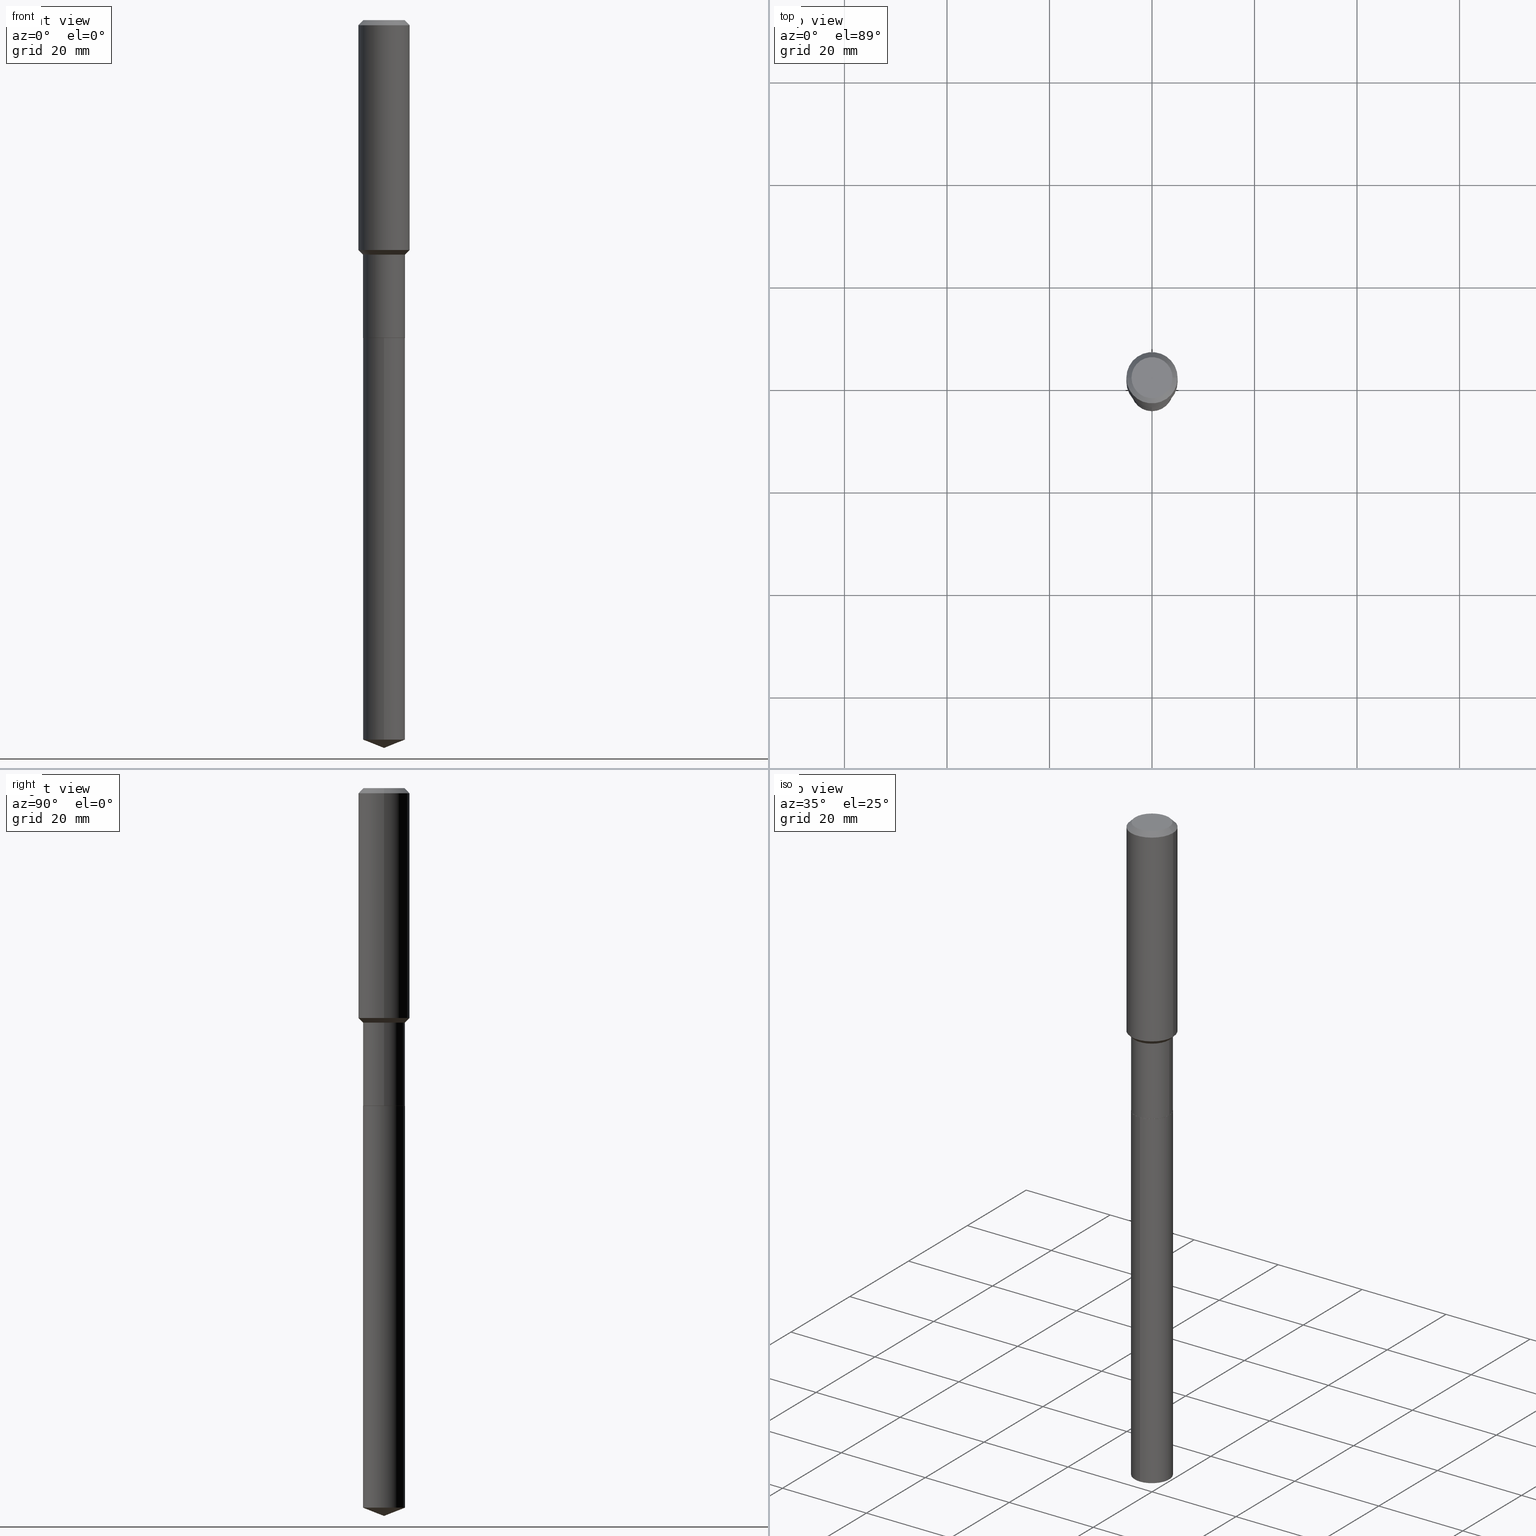
[diagram: canonical four-view strip — front | top / right | iso, engineering-drawing reading convention]
A machine part, canonical four-view strip (front | top / right | iso — engineering-drawing reading convention). The complete STEP part file that produces these views, byte-faithful:
ISO-10303-21;
HEADER;
FILE_DESCRIPTION (( 'STEP AP203' ),
    '1' );
FILE_NAME ('66658.STEP',
    '2024-04-25T03:02:01',
    ( '' ),
    ( '' ),
    'SwSTEP 2.0',
    'SolidWorks 2023',
    '' );
FILE_SCHEMA (( 'CONFIG_CONTROL_DESIGN' ));
ENDSEC;

DATA;
#1 = DIRECTION ( 'NONE',  ( -2.445468806185136597E-29, 3.491481338843145583E-15, 1.000000000000000000 ) ) ;
#2 = AXIS2_PLACEMENT_3D ( 'NONE', #41, #193, #274 ) ;
#3 = CIRCLE ( 'NONE', #341, 0.1968500000000002192 ) ;
#4 = FACE_OUTER_BOUND ( 'NONE', #14, .T. ) ;
#5 = ADVANCED_FACE ( 'NONE', ( #287 ), #318, .F. ) ;
#6 = DIRECTION ( 'NONE',  ( 0.7071067811865474617, -2.468850131082256666E-15, 0.7071067811865474617 ) ) ;
#7 = DIRECTION ( 'NONE',  ( -2.445468806185136597E-29, 3.491481338843145583E-15, 1.000000000000000000 ) ) ;
#8 = VECTOR ( 'NONE', #371, 39.37007874015748854 ) ;
#9 = APPROVAL_PERSON_ORGANIZATION ( #110, #202, #20 ) ;
#10 =( NAMED_UNIT ( * ) PLANE_ANGLE_UNIT ( ) SI_UNIT ( $, .RADIAN. ) );
#11 = LINE ( 'NONE', #387, #454 ) ;
#12 = CARTESIAN_POINT ( 'NONE',  ( 1.351579263302643101E-28, -1.929732669424208428E-14, -5.526922849235747393 ) ) ;
#13 = APPROVAL_ROLE ( '' ) ;
#14 = EDGE_LOOP ( 'NONE', ( #458, #60, #225, #209 ) ) ;
#15 = CONICAL_SURFACE ( 'NONE', #86, 0.1608999999999999875, 0.7853981633973118326 ) ;
#16 = VECTOR ( 'NONE', #441, 39.37007874015748143 ) ;
#17 = AXIS2_PLACEMENT_3D ( 'NONE', #168, #90, #316 ) ;
#18 = ORIENTED_EDGE ( 'NONE', *, *, #307, .T. ) ;
#19 = CC_DESIGN_PERSON_AND_ORGANIZATION_ASSIGNMENT ( #65, #30, ( #69 ) ) ;
#20 = APPROVAL_ROLE ( '' ) ;
#21 = FACE_OUTER_BOUND ( 'NONE', #29, .T. ) ;
#22 = CARTESIAN_POINT ( 'NONE',  ( -0.1613999999999999047, -5.144484248944659860E-15, -1.801899999999999169 ) ) ;
#23 = COORDINATED_UNIVERSAL_TIME_OFFSET ( 5, 0, .BEHIND. ) ;
#24 = ADVANCED_FACE ( 'NONE', ( #21 ), #99, .F. ) ;
#25 = FACE_OUTER_BOUND ( 'NONE', #228, .T. ) ;
#26 = LOCAL_TIME ( 23, 2, 1.000000000000000000, #171 ) ;
#27 = DIRECTION ( 'NONE',  ( -2.445468806185136597E-29, 3.491481338843145583E-15, 1.000000000000000000 ) ) ;
#28 = ORIENTED_EDGE ( 'NONE', *, *, #273, .F. ) ;
#29 = EDGE_LOOP ( 'NONE', ( #448, #53 ) ) ;
#30 = PERSON_AND_ORGANIZATION_ROLE ( 'design_supplier' ) ;
#31 = FACE_OUTER_BOUND ( 'NONE', #101, .T. ) ;
#32 = ORIENTED_EDGE ( 'NONE', *, *, #243, .T. ) ;
#33 = CARTESIAN_POINT ( 'NONE',  ( -0.1608999999999999875, -7.379093538144229883E-15, -2.440899999999999181 ) ) ;
#34 = CIRCLE ( 'NONE', #397, 0.1613999999999999879 ) ;
#35 = PERSON ( 'UNSPECIFIED', 'UNSPECIFIED', 'UNSPECIFIED', ('UNSPECIFIED'), ('UNSPECIFIED'), ('UNSPECIFIED') ) ;
#36 = ADVANCED_FACE ( 'NONE', ( #284 ), #180, .T. ) ;
#37 = ORIENTED_EDGE ( 'NONE', *, *, #42, .F. ) ;
#38 = DIRECTION ( 'NONE',  ( -2.445468806185136597E-29, 3.491481338843145583E-15, 1.000000000000000000 ) ) ;
#39 = ORIENTED_EDGE ( 'NONE', *, *, #460, .T. ) ;
#40 = DIRECTION ( 'NONE',  ( -2.445468806185136597E-29, 3.491481338843145583E-15, 1.000000000000000000 ) ) ;
#41 = CARTESIAN_POINT ( 'NONE',  ( -9.427742298522567634E-47, 1.346031739168368355E-32, 3.855188123715870730E-18 ) ) ;
#42 = EDGE_CURVE ( 'NONE', #75, #124, #11, .T. ) ;
#43 = AXIS2_PLACEMENT_3D ( 'NONE', #432, #249, #423 ) ;
#44 = AXIS2_PLACEMENT_3D ( 'NONE', #453, #85, #87 ) ;
#45 = CARTESIAN_POINT ( 'NONE',  ( -0.1614000000000000157, -6.259139666370332882E-15, -2.440399999999999014 ) ) ;
#46 = CYLINDRICAL_SURFACE ( 'NONE', #17, 0.1968500000000001082 ) ;
#47 = EDGE_CURVE ( 'NONE', #121, #124, #317, .T. ) ;
#48 = DIRECTION ( 'NONE',  ( -2.445468806185136877E-29, 3.491481338843145188E-15, 1.000000000000000000 ) ) ;
#49 = CARTESIAN_POINT ( 'NONE',  ( 1.351579263302643101E-28, -1.929732669424208428E-14, -5.526922849235747393 ) ) ;
#50 = ORIENTED_EDGE ( 'NONE', *, *, #437, .T. ) ;
#51 = AXIS2_PLACEMENT_3D ( 'NONE', #342, #488, #304 ) ;
#52 = CARTESIAN_POINT ( 'NONE',  ( 0.1608999999999999875, -9.645915494821952106E-15, -2.440899999999999181 ) ) ;
#53 = ORIENTED_EDGE ( 'NONE', *, *, #238, .F. ) ;
#54 = ORIENTED_EDGE ( 'NONE', *, *, #243, .F. ) ;
#55 = PLANE ( 'NONE',  #120 ) ;
#56 = DIRECTION ( 'NONE',  ( 2.445428369358333409E-29, -3.491539246680648506E-15, -1.000000000000000000 ) ) ;
#57 = ADVANCED_FACE ( 'NONE', ( #321 ), #15, .T. ) ;
#58 = PERSON_AND_ORGANIZATION_ROLE ( 'classification_officer' ) ;
#59 = CIRCLE ( 'NONE', #192, 0.1613999999999999879 ) ;
#60 = ORIENTED_EDGE ( 'NONE', *, *, #474, .T. ) ;
#61 = COORDINATED_UNIVERSAL_TIME_OFFSET ( 5, 0, .BEHIND. ) ;
#62 = DIRECTION ( 'NONE',  ( -2.445428369358333970E-29, 3.491539246680648506E-15, 1.000000000000000000 ) ) ;
#63 = EDGE_CURVE ( 'NONE', #124, #121, #237, .T. ) ;
#64 = CYLINDRICAL_SURFACE ( 'NONE', #456, 0.1613999999999999879 ) ;
#65 = PERSON_AND_ORGANIZATION ( #35, #390 ) ;
#66 = PRODUCT ( '66658', '66658', '', ( #130 ) ) ;
#67 = CIRCLE ( 'NONE', #2, 0.1574800000000000089 ) ;
#68 = DIRECTION ( 'NONE',  ( -2.445468806185136597E-29, 3.491481338843145583E-15, 1.000000000000000000 ) ) ;
#69 = PRODUCT_DEFINITION_FORMATION_WITH_SPECIFIED_SOURCE ( 'ANY', '', #66, .NOT_KNOWN. ) ;
#70 = CARTESIAN_POINT ( 'NONE',  ( 0.1614000000000000157, -9.647661235491372820E-15, -2.440399999999999014 ) ) ;
#71 = ORIENTED_EDGE ( 'NONE', *, *, #377, .T. ) ;
#72 = VERTEX_POINT ( 'NONE', #73 ) ;
#73 = CARTESIAN_POINT ( 'NONE',  ( -0.1968500000000000250, -1.753790040311104889E-15, -0.03937000000000026589 ) ) ;
#74 = ADVANCED_FACE ( 'NONE', ( #292 ), #229, .T. ) ;
#75 = VERTEX_POINT ( 'NONE', #298 ) ;
#76 = FACE_OUTER_BOUND ( 'NONE', #81, .T. ) ;
#77 = CIRCLE ( 'NONE', #311, 0.1968500000000002192 ) ;
#78 = APPROVAL_PERSON_ORGANIZATION ( #314, #222, #13 ) ;
#79 = ORIENTED_EDGE ( 'NONE', *, *, #412, .T. ) ;
#80 = CARTESIAN_POINT ( 'NONE',  ( 0.000000000000000000, 0.000000000000000000, 0.000000000000000000 ) ) ;
#81 = EDGE_LOOP ( 'NONE', ( #410, #396, #426, #116 ) ) ;
#82 = EDGE_CURVE ( 'NONE', #75, #121, #260, .T. ) ;
#83 = CARTESIAN_POINT ( 'NONE',  ( 5.969144809017299038E-29, -8.522356799982231388E-15, -2.440899999999999181 ) ) ;
#84 = VERTEX_POINT ( 'NONE', #482 ) ;
#85 = DIRECTION ( 'NONE',  ( -2.445468806185136597E-29, 3.491481338843145583E-15, 1.000000000000000000 ) ) ;
#86 = AXIS2_PLACEMENT_3D ( 'NONE', #473, #141, #350 ) ;
#87 = DIRECTION ( 'NONE',  ( 1.000000000000000000, -6.982962677686265922E-15, 4.876223630392693006E-29 ) ) ;
#88 = EDGE_LOOP ( 'NONE', ( #227, #296, #95, #315 ) ) ;
#89 = ADVANCED_FACE ( 'NONE', ( #443 ), #221, .T. ) ;
#90 = DIRECTION ( 'NONE',  ( -2.445468806185136597E-29, 3.491481338843145583E-15, 1.000000000000000000 ) ) ;
#91 = ORIENTED_EDGE ( 'NONE', *, *, #207, .F. ) ;
#92 = CIRCLE ( 'NONE', #365, 0.1614000000000000157 ) ;
#93 = CARTESIAN_POINT ( 'NONE',  ( 0.1968500000000001082, -1.374596203102542397E-15, 9.598753983154305062E-30 ) ) ;
#94 = VERTEX_POINT ( 'NONE', #112 ) ;
#95 = ORIENTED_EDGE ( 'NONE', *, *, #129, .F. ) ;
#96 = CC_DESIGN_PERSON_AND_ORGANIZATION_ASSIGNMENT ( #362, #479, ( #170 ) ) ;
#97 = FACE_OUTER_BOUND ( 'NONE', #88, .T. ) ;
#98 = PRODUCT_DEFINITION_SHAPE ( 'NONE', 'NONE',  #170 ) ;
#99 = PLANE ( 'NONE',  #181 ) ;
#100 = PERSON_AND_ORGANIZATION ( #35, #390 ) ;
#101 = EDGE_LOOP ( 'NONE', ( #123, #340, #153, #465 ) ) ;
#102 = CIRCLE ( 'NONE', #372, 0.1608999999999999875 ) ;
#103 = CARTESIAN_POINT ( 'NONE',  ( 4.319798372685731451E-29, -6.167527210999470955E-15, -1.766449999999998965 ) ) ;
#104 = EDGE_CURVE ( 'NONE', #487, #72, #184, .T. ) ;
#105 = CYLINDRICAL_SURFACE ( 'NONE', #462, 0.1613999999999999602 ) ;
#106 = CARTESIAN_POINT ( 'NONE',  ( -1.127050176178428435E-15, -0.1614000000000193058, -5.526922849235746504 ) ) ;
#107 = VECTOR ( 'NONE', #143, 39.37007874015748143 ) ;
#108 = DIRECTION ( 'NONE',  ( 1.000000000000000000, -6.982962677686265133E-15, 0.000000000000000000 ) ) ;
#109 = ORIENTED_EDGE ( 'NONE', *, *, #47, .F. ) ;
#110 = PERSON_AND_ORGANIZATION ( #35, #390 ) ;
#111 = CC_DESIGN_PERSON_AND_ORGANIZATION_ASSIGNMENT ( #188, #142, ( #69 ) ) ;
#112 = CARTESIAN_POINT ( 'NONE',  ( 0.1968500000000002192, -7.542123414102014930E-15, -1.766449999999998965 ) ) ;
#113 = ORIENTED_EDGE ( 'NONE', *, *, #474, .F. ) ;
#114 = DIRECTION ( 'NONE',  ( 1.000000000000000000, -6.982962677686268288E-15, 0.000000000000000000 ) ) ;
#115 = EDGE_LOOP ( 'NONE', ( #415, #155, #248, #54 ) ) ;
#116 = ORIENTED_EDGE ( 'NONE', *, *, #104, .F. ) ;
#117 = LINE ( 'NONE', #337, #346 ) ;
#118 = VECTOR ( 'NONE', #255, 39.37007874015748143 ) ;
#119 = ADVANCED_FACE ( 'NONE', ( #25 ), #64, .T. ) ;
#120 = AXIS2_PLACEMENT_3D ( 'NONE', #355, #467, #132 ) ;
#121 = VERTEX_POINT ( 'NONE', #325 ) ;
#122 = CARTESIAN_POINT ( 'NONE',  ( 0.1613999999999999047, -7.418350400640025199E-15, -1.801899999999999169 ) ) ;
#123 = ORIENTED_EDGE ( 'NONE', *, *, #399, .T. ) ;
#124 = VERTEX_POINT ( 'NONE', #106 ) ;
#125 = DIRECTION ( 'NONE',  ( -2.445468806185136597E-29, 3.491481338843145583E-15, 1.000000000000000000 ) ) ;
#126 = DIRECTION ( 'NONE',  ( -2.445468806185136597E-29, 3.491481338843145583E-15, 1.000000000000000000 ) ) ;
#127 = AXIS2_PLACEMENT_3D ( 'NONE', #459, #125, #383 ) ;
#128 = LINE ( 'NONE', #93, #282 ) ;
#129 = EDGE_CURVE ( 'NONE', #235, #72, #281, .T. ) ;
#130 = MECHANICAL_CONTEXT ( 'NONE', #386, 'mechanical' ) ;
#131 = ORIENTED_EDGE ( 'NONE', *, *, #451, .F. ) ;
#132 = DIRECTION ( 'NONE',  ( -1.000000000000000000, 6.982962677686265922E-15, -4.876176775795935793E-29 ) ) ;
#133 = VERTEX_POINT ( 'NONE', #289 ) ;
#134 = CLOSED_SHELL ( 'NONE', ( #57, #277, #466, #252, #196, #407, #149, #391, #74, #481, #24, #353 ) ) ;
#135 = EDGE_CURVE ( 'NONE', #278, #133, #480, .T. ) ;
#136 = AXIS2_PLACEMENT_3D ( 'NONE', #363, #366, #226 ) ;
#137 = SECURITY_CLASSIFICATION ( '', '', #219 ) ;
#138 = DIRECTION ( 'NONE',  ( -2.445468806185136597E-29, 3.491481338843145583E-15, 1.000000000000000000 ) ) ;
#139 = EDGE_LOOP ( 'NONE', ( #79, #452 ) ) ;
#140 = DIRECTION ( 'NONE',  ( 1.000000000000000000, -6.982962677686268288E-15, 0.000000000000000000 ) ) ;
#141 = DIRECTION ( 'NONE',  ( -2.445468806185136597E-29, 3.491481338843145583E-15, 1.000000000000000000 ) ) ;
#142 = PERSON_AND_ORGANIZATION_ROLE ( 'creator' ) ;
#143 = DIRECTION ( 'NONE',  ( -0.7071067811865452413, 2.468850131082233000E-15, -0.7071067811865497932 ) ) ;
#144 = DIRECTION ( 'NONE',  ( -2.445468806185136597E-29, 3.491481338843145583E-15, 1.000000000000000000 ) ) ;
#145 = APPLICATION_CONTEXT ( 'configuration controlled 3d designs of mechanical parts and assemblies' ) ;
#146 = DIRECTION ( 'NONE',  ( -2.445428369358333970E-29, 3.491539246680648506E-15, 1.000000000000000000 ) ) ;
#147 = DATE_AND_TIME ( #182, #276 ) ;
#148 = DIRECTION ( 'NONE',  ( 1.000000000000000000, -6.982962677686268288E-15, 0.000000000000000000 ) ) ;
#149 = ADVANCED_FACE ( 'NONE', ( #409 ), #382, .T. ) ;
#150 = AXIS2_PLACEMENT_3D ( 'NONE', #80, #1, #159 ) ;
#151 = DIRECTION ( 'NONE',  ( 2.445468806185136597E-29, -3.491481338843145583E-15, -1.000000000000000000 ) ) ;
#152 = LOCAL_TIME ( 23, 2, 1.000000000000000000, #288 ) ;
#153 = ORIENTED_EDGE ( 'NONE', *, *, #178, .F. ) ;
#154 = CARTESIAN_POINT ( 'NONE',  ( 0.1574800000000000089, -1.284169937930321189E-15, 3.855188123724205385E-18 ) ) ;
#155 = ORIENTED_EDGE ( 'NONE', *, *, #238, .T. ) ;
#156 = DIRECTION ( 'NONE',  ( 1.000000000000000000, -6.982962677686265922E-15, 0.000000000000000000 ) ) ;
#157 = EDGE_CURVE ( 'NONE', #251, #265, #92, .T. ) ;
#158 = EDGE_LOOP ( 'NONE', ( #213, #455, #18, #113 ) ) ;
#159 = DIRECTION ( 'NONE',  ( 1.000000000000000000, -6.982962677686266711E-15, 4.876176775795935793E-29 ) ) ;
#160 = EDGE_LOOP ( 'NONE', ( #37, #302, #360 ) ) ;
#161 = FACE_OUTER_BOUND ( 'NONE', #468, .T. ) ;
#162 = CARTESIAN_POINT ( 'NONE',  ( 9.627810689950948900E-31, -1.374596203102555561E-16, -0.03937000000000026589 ) ) ;
#163 = EDGE_CURVE ( 'NONE', #483, #265, #402, .T. ) ;
#164 = APPLICATION_PROTOCOL_DEFINITION ( 'international standard', 'config_control_design', 1994, #145 ) ;
#165 = AXIS2_PLACEMENT_3D ( 'NONE', #401, #27, #368 ) ;
#166 = DIRECTION ( 'NONE',  ( -6.982962677686266711E-15, -1.000000000000000000, 6.770379166454184154E-15 ) ) ;
#167 = UNCERTAINTY_MEASURE_WITH_UNIT (LENGTH_MEASURE( 1.000000000000000082E-05 ), #244, 'distance_accuracy_value', 'NONE');
#168 = CARTESIAN_POINT ( 'NONE',  ( 0.000000000000000000, 0.000000000000000000, 0.000000000000000000 ) ) ;
#169 = DIRECTION ( 'NONE',  ( -2.445428369358333970E-29, 3.491539246680648506E-15, 1.000000000000000000 ) ) ;
#170 = PRODUCT_DEFINITION ( 'UNKNOWN', '', #69, #354 ) ;
#171 = COORDINATED_UNIVERSAL_TIME_OFFSET ( 5, 0, .BEHIND. ) ;
#172 = ORIENTED_EDGE ( 'NONE', *, *, #361, .F. ) ;
#173 = AXIS2_PLACEMENT_3D ( 'NONE', #197, #490, #156 ) ;
#174 = DIRECTION ( 'NONE',  ( -6.497071151882111159E-15, -0.9304175679820234635, 0.3665012267243001332 ) ) ;
#175 = ADVANCED_BREP_SHAPE_REPRESENTATION ( '66658', ( #261, #424, #269 ), #327 ) ;
#176 = PERSON_AND_ORGANIZATION ( #35, #390 ) ;
#177 = CARTESIAN_POINT ( 'NONE',  ( 5.969144809017297917E-29, -8.522356799982231388E-15, -2.440899999999999181 ) ) ;
#178 = EDGE_CURVE ( 'NONE', #94, #133, #77, .T. ) ;
#179 = CARTESIAN_POINT ( 'NONE',  ( -0.1968500000000000250, 1.237136582792286225E-15, -0.03937000000000026589 ) ) ;
#180 = CONICAL_SURFACE ( 'NONE', #43, 99.94676754583900902, 1.195550537616116182 ) ;
#181 = AXIS2_PLACEMENT_3D ( 'NONE', #352, #242, #471 ) ;
#182 = CALENDAR_DATE ( 2024, 24, 4 ) ;
#183 = CIRCLE ( 'NONE', #438, 0.1614000000000000157 ) ;
#184 = LINE ( 'NONE', #179, #107 ) ;
#185 = DATE_TIME_ROLE ( 'creation_date' ) ;
#186 = CARTESIAN_POINT ( 'NONE',  ( 0.1968500000000000250, -1.512055823412797189E-15, -0.03937000000000026589 ) ) ;
#187 = CC_DESIGN_DATE_AND_TIME_ASSIGNMENT ( #406, #185, ( #170 ) ) ;
#188 = PERSON_AND_ORGANIZATION ( #35, #390 ) ;
#189 = CARTESIAN_POINT ( 'NONE',  ( 4.406490241864995269E-29, -6.291300224461461475E-15, -1.801899999999999169 ) ) ;
#190 = ORIENTED_EDGE ( 'NONE', *, *, #333, .T. ) ;
#191 = DIMENSIONAL_EXPONENTS ( 1.000000000000000000, 0.000000000000000000, 0.000000000000000000, 0.000000000000000000, 0.000000000000000000, 0.000000000000000000, 0.000000000000000000 ) ;
#192 = AXIS2_PLACEMENT_3D ( 'NONE', #472, #283, #464 ) ;
#193 = DIRECTION ( 'NONE',  ( -2.445468806185136597E-29, 3.491481338843145583E-15, 1.000000000000000000 ) ) ;
#194 = CC_DESIGN_APPROVAL ( #202, ( #69 ) ) ;
#195 = EDGE_LOOP ( 'NONE', ( #434, #28, #379, #71 ) ) ;
#196 = ADVANCED_FACE ( 'NONE', ( #322 ), #105, .T. ) ;
#197 = CARTESIAN_POINT ( 'NONE',  ( 9.627810689950948900E-31, -1.374596203102555561E-16, -0.03937000000000026589 ) ) ;
#198 = LINE ( 'NONE', #240, #319 ) ;
#199 = CYLINDRICAL_SURFACE ( 'NONE', #150, 0.1968500000000001082 ) ;
#200 = AXIS2_PLACEMENT_3D ( 'NONE', #162, #275, #232 ) ;
#201 = CARTESIAN_POINT ( 'NONE',  ( -0.1613999999999999602, 1.146815975516801417E-15, -7.939161235671416085E-30 ) ) ;
#202 = APPROVAL ( #395, 'UNSPECIFIED' ) ;
#203 =( NAMED_UNIT ( * ) SI_UNIT ( $, .STERADIAN. ) SOLID_ANGLE_UNIT ( ) );
#204 = CARTESIAN_POINT ( 'NONE',  ( 4.319798372685731451E-29, -6.167527210999470955E-15, -1.766449999999998965 ) ) ;
#205 = ORIENTED_EDGE ( 'NONE', *, *, #163, .T. ) ;
#206 = AXIS2_PLACEMENT_3D ( 'NONE', #485, #151, #258 ) ;
#207 = EDGE_CURVE ( 'NONE', #278, #330, #295, .T. ) ;
#208 = CARTESIAN_POINT ( 'NONE',  ( 0.000000000000000000, 0.000000000000000000, 0.000000000000000000 ) ) ;
#209 = ORIENTED_EDGE ( 'NONE', *, *, #377, .F. ) ;
#210 = DIRECTION ( 'NONE',  ( 1.000000000000000000, 0.000000000000000000, 0.000000000000000000 ) ) ;
#211 = EDGE_LOOP ( 'NONE', ( #50, #205, #271, #131 ) ) ;
#212 = DIRECTION ( 'NONE',  ( 1.000000000000000000, -6.982962677686265922E-15, 0.000000000000000000 ) ) ;
#213 = ORIENTED_EDGE ( 'NONE', *, *, #135, .F. ) ;
#214 = VECTOR ( 'NONE', #414, 39.37007874015748143 ) ;
#215 = DATE_AND_TIME ( #331, #152 ) ;
#216 = DIRECTION ( 'NONE',  ( 6.982962677686265922E-15, 1.000000000000000000, -3.491539246680648506E-15 ) ) ;
#217 = DATE_AND_TIME ( #293, #26 ) ;
#218 = DIRECTION ( 'NONE',  ( -6.982962677686265922E-15, -1.000000000000000000, 3.498627837350038143E-15 ) ) ;
#219 = SECURITY_CLASSIFICATION_LEVEL ( 'unclassified' ) ;
#220 = DIRECTION ( 'NONE',  ( -6.982962677686266711E-15, -1.000000000000000000, 3.385189583227092077E-15 ) ) ;
#221 = CONICAL_SURFACE ( 'NONE', #358, 99.94676754583900902, 1.195550537616116182 ) ;
#222 = APPROVAL ( #351, 'UNSPECIFIED' ) ;
#223 = CARTESIAN_POINT ( 'NONE',  ( 0.000000000000000000, 0.000000000000000000, 0.000000000000000000 ) ) ;
#224 = DIRECTION ( 'NONE',  ( 1.000000000000000000, -6.982962677686265922E-15, 0.000000000000000000 ) ) ;
#225 = ORIENTED_EDGE ( 'NONE', *, *, #444, .T. ) ;
#226 = DIRECTION ( 'NONE',  ( 1.000000000000000000, -6.982962677686265922E-15, 0.000000000000000000 ) ) ;
#227 = ORIENTED_EDGE ( 'NONE', *, *, #178, .T. ) ;
#228 = EDGE_LOOP ( 'NONE', ( #266, #375, #357, #489 ) ) ;
#229 = CONICAL_SURFACE ( 'NONE', #206, 0.1968500000000000250, 0.7853981633974450594 ) ;
#230 = CARTESIAN_POINT ( 'NONE',  ( 1.146815975516860976E-15, 0.1613999999999914392, -2.440899999999999626 ) ) ;
#231 = EDGE_LOOP ( 'NONE', ( #172, #392, #190, #303 ) ) ;
#232 = DIRECTION ( 'NONE',  ( -1.000000000000000000, 6.982962677686265922E-15, 0.000000000000000000 ) ) ;
#233 = ORIENTED_EDGE ( 'NONE', *, *, #273, .T. ) ;
#234 = DIRECTION ( 'NONE',  ( -2.445468806185136877E-29, 3.491481338843145188E-15, 1.000000000000000000 ) ) ;
#235 = VERTEX_POINT ( 'NONE', #186 ) ;
#236 = LINE ( 'NONE', #201, #486 ) ;
#237 = CIRCLE ( 'NONE', #356, 0.1613999999999999879 ) ;
#238 = EDGE_CURVE ( 'NONE', #483, #313, #253, .T. ) ;
#239 = AXIS2_PLACEMENT_3D ( 'NONE', #378, #40, #416 ) ;
#240 = CARTESIAN_POINT ( 'NONE',  ( 0.1968500000000000250, -1.487948651171581601E-15, -0.03937000000000026589 ) ) ;
#241 = DIRECTION ( 'NONE',  ( 0.7071067811864509833, -2.468850131081245741E-15, 0.7071067811866440511 ) ) ;
#242 = DIRECTION ( 'NONE',  ( -2.438088387897960049E-29, 3.491481338843145188E-15, 1.000000000000000000 ) ) ;
#243 = EDGE_CURVE ( 'NONE', #265, #251, #183, .T. ) ;
#244 =( CONVERSION_BASED_UNIT ( 'INCH', #345 ) LENGTH_UNIT ( ) NAMED_UNIT ( #191 ) );
#245 = ORIENTED_EDGE ( 'NONE', *, *, #285, .T. ) ;
#246 = AXIS2_PLACEMENT_3D ( 'NONE', #477, #144, #364 ) ;
#247 = FACE_OUTER_BOUND ( 'NONE', #376, .T. ) ;
#248 = ORIENTED_EDGE ( 'NONE', *, *, #451, .T. ) ;
#249 = DIRECTION ( 'NONE',  ( -2.445428369358333970E-29, 3.491539246680648506E-15, 1.000000000000000000 ) ) ;
#250 = CARTESIAN_POINT ( 'NONE',  ( 5.969144809017299038E-29, -8.522356799982231388E-15, -2.440899999999999181 ) ) ;
#251 = VERTEX_POINT ( 'NONE', #70 ) ;
#252 = ADVANCED_FACE ( 'NONE', ( #31 ), #419, .T. ) ;
#253 = CIRCLE ( 'NONE', #267, 0.1608999999999999875 ) ;
#254 = COORDINATED_UNIVERSAL_TIME_OFFSET ( 5, 0, .BEHIND. ) ;
#255 = DIRECTION ( 'NONE',  ( 6.611014441532059489E-15, 0.9304175679820259059, 0.3665012267242935828 ) ) ;
#256 = DIRECTION ( 'NONE',  ( 1.000000000000000000, -6.982962677686265133E-15, 0.000000000000000000 ) ) ;
#257 = EDGE_CURVE ( 'NONE', #133, #72, #305, .T. ) ;
#258 = DIRECTION ( 'NONE',  ( -1.000000000000000000, 6.982962677686265922E-15, 0.000000000000000000 ) ) ;
#259 = AXIS2_PLACEMENT_3D ( 'NONE', #189, #126, #384 ) ;
#260 = LINE ( 'NONE', #449, #118 ) ;
#261 = MANIFOLD_SOLID_BREP ( 'Body-Move/Copy2[1]', #403 ) ;
#262 = DIRECTION ( 'NONE',  ( -2.445468806185136597E-29, 3.491481338843145583E-15, 1.000000000000000000 ) ) ;
#263 = ORIENTED_EDGE ( 'NONE', *, *, #369, .T. ) ;
#264 = LINE ( 'NONE', #230, #214 ) ;
#265 = VERTEX_POINT ( 'NONE', #45 ) ;
#266 = ORIENTED_EDGE ( 'NONE', *, *, #63, .T. ) ;
#267 = AXIS2_PLACEMENT_3D ( 'NONE', #329, #446, #148 ) ;
#268 = LINE ( 'NONE', #411, #334 ) ;
#269 = AXIS2_PLACEMENT_3D ( 'NONE', #208, #388, #210 ) ;
#270 = CARTESIAN_POINT ( 'NONE',  ( 1.146815975516936904E-15, 0.1613999999999914392, -2.440899999999999626 ) ) ;
#271 = ORIENTED_EDGE ( 'NONE', *, *, #157, .F. ) ;
#272 = ORIENTED_EDGE ( 'NONE', *, *, #399, .F. ) ;
#273 = EDGE_CURVE ( 'NONE', #487, #299, #67, .T. ) ;
#274 = DIRECTION ( 'NONE',  ( 1.000000000000000000, -6.982962677686265922E-15, 4.876223630392693006E-29 ) ) ;
#275 = DIRECTION ( 'NONE',  ( 2.445468806185136597E-29, -3.491481338843145583E-15, -1.000000000000000000 ) ) ;
#276 = LOCAL_TIME ( 23, 2, 1.000000000000000000, #61 ) ;
#277 = ADVANCED_FACE ( 'NONE', ( #76 ), #404, .T. ) ;
#278 = VERTEX_POINT ( 'NONE', #421 ) ;
#279 = CARTESIAN_POINT ( 'NONE',  ( 0.1613999999999999602, -1.127050176178562936E-15, 7.870149316134637915E-30 ) ) ;
#280 = ORIENTED_EDGE ( 'NONE', *, *, #82, .F. ) ;
#281 = CIRCLE ( 'NONE', #136, 0.1968500000000000250 ) ;
#282 = VECTOR ( 'NONE', #48, 39.37007874015748143 ) ;
#283 = DIRECTION ( 'NONE',  ( -2.445428369358333970E-29, 3.491539246680648506E-15, 1.000000000000000000 ) ) ;
#284 = FACE_OUTER_BOUND ( 'NONE', #370, .T. ) ;
#285 = EDGE_CURVE ( 'NONE', #299, #487, #470, .T. ) ;
#286 = CARTESIAN_POINT ( 'NONE',  ( -0.1608999999999999875, -7.376444310970119471E-15, -2.440899999999999181 ) ) ;
#287 = FACE_OUTER_BOUND ( 'NONE', #139, .T. ) ;
#288 = COORDINATED_UNIVERSAL_TIME_OFFSET ( 5, 0, .BEHIND. ) ;
#289 = CARTESIAN_POINT ( 'NONE',  ( -0.1968500000000002192, -4.768823835655711590E-15, -1.766449999999998965 ) ) ;
#290 = CARTESIAN_POINT ( 'NONE',  ( 5.967922074614205116E-29, -8.520611059312809095E-15, -2.440399999999999014 ) ) ;
#291 = ADVANCED_FACE ( 'NONE', ( #418 ), #335, .T. ) ;
#292 = FACE_OUTER_BOUND ( 'NONE', #195, .T. ) ;
#293 = CALENDAR_DATE ( 2024, 24, 4 ) ;
#294 = DIRECTION ( 'NONE',  ( -2.445468806185136597E-29, 3.491481338843145583E-15, 1.000000000000000000 ) ) ;
#295 = CIRCLE ( 'NONE', #165, 0.1613999999999999047 ) ;
#296 = ORIENTED_EDGE ( 'NONE', *, *, #257, .T. ) ;
#297 = APPROVAL_ROLE ( '' ) ;
#298 = CARTESIAN_POINT ( 'NONE',  ( 1.367116729889776270E-28, -1.951945015856816032E-14, -5.590499999999999581 ) ) ;
#299 = VERTEX_POINT ( 'NONE', #154 ) ;
#300 = APPROVAL ( #442, 'UNSPECIFIED' ) ;
#301 = DIRECTION ( 'NONE',  ( -2.445428369358333970E-29, 3.491539246680648506E-15, 1.000000000000000000 ) ) ;
#302 = ORIENTED_EDGE ( 'NONE', *, *, #82, .T. ) ;
#303 = ORIENTED_EDGE ( 'NONE', *, *, #427, .F. ) ;
#304 = DIRECTION ( 'NONE',  ( -6.982962677686266711E-15, -1.000000000000000000, 3.385189583227092077E-15 ) ) ;
#305 = LINE ( 'NONE', #457, #428 ) ;
#306 = CC_DESIGN_APPROVAL ( #222, ( #170 ) ) ;
#307 = EDGE_CURVE ( 'NONE', #330, #94, #117, .T. ) ;
#308 = CYLINDRICAL_SURFACE ( 'NONE', #127, 0.1613999999999999602 ) ;
#309 = DIRECTION ( 'NONE',  ( -2.445428369358333970E-29, 3.491539246680648506E-15, 1.000000000000000000 ) ) ;
#310 = PERSON_AND_ORGANIZATION_ROLE ( 'design_owner' ) ;
#311 = AXIS2_PLACEMENT_3D ( 'NONE', #103, #68, #224 ) ;
#312 = LOCAL_TIME ( 23, 2, 1.000000000000000000, #23 ) ;
#313 = VERTEX_POINT ( 'NONE', #338 ) ;
#314 = PERSON_AND_ORGANIZATION ( #35, #390 ) ;
#315 = ORIENTED_EDGE ( 'NONE', *, *, #444, .F. ) ;
#316 = DIRECTION ( 'NONE',  ( 1.000000000000000000, -6.982962677686266711E-15, 4.876176775795935793E-29 ) ) ;
#317 = CIRCLE ( 'NONE', #381, 0.1613999999999999879 ) ;
#318 = PLANE ( 'NONE',  #469 ) ;
#319 = VECTOR ( 'NONE', #374, 39.37007874015748143 ) ;
#320 = EDGE_CURVE ( 'NONE', #299, #235, #198, .T. ) ;
#321 = FACE_OUTER_BOUND ( 'NONE', #211, .T. ) ;
#322 = FACE_OUTER_BOUND ( 'NONE', #417, .T. ) ;
#323 = DATE_TIME_ROLE ( 'classification_date' ) ;
#324 = CC_DESIGN_DATE_AND_TIME_ASSIGNMENT ( #215, #323, ( #137 ) ) ;
#325 = CARTESIAN_POINT ( 'NONE',  ( 1.146815975516936707E-15, 0.1613999999999807256, -5.526922849235749169 ) ) ;
#326 = CIRCLE ( 'NONE', #239, 0.1613999999999999047 ) ;
#327 =( GEOMETRIC_REPRESENTATION_CONTEXT ( 3 ) GLOBAL_UNCERTAINTY_ASSIGNED_CONTEXT ( ( #167 ) ) GLOBAL_UNIT_ASSIGNED_CONTEXT ( ( #244, #10, #203 ) ) REPRESENTATION_CONTEXT ( 'NONE', 'WORKASPACE' ) );
#328 = CARTESIAN_POINT ( 'NONE',  ( -8.260544145390422756E-28, 1.179428662548396618E-13, 33.77957874015748274 ) ) ;
#329 = CARTESIAN_POINT ( 'NONE',  ( 5.969144809017299038E-29, -8.522356799982231388E-15, -2.440899999999999181 ) ) ;
#330 = VERTEX_POINT ( 'NONE', #122 ) ;
#331 = CALENDAR_DATE ( 2024, 24, 4 ) ;
#332 = DIRECTION ( 'NONE',  ( -6.982962677686266711E-15, -1.000000000000000000, 6.770379166454184154E-15 ) ) ;
#333 = EDGE_CURVE ( 'NONE', #124, #84, #268, .T. ) ;
#334 = VECTOR ( 'NONE', #301, 39.37007874015748143 ) ;
#335 = CYLINDRICAL_SURFACE ( 'NONE', #51, 0.1613999999999999879 ) ;
#336 = ORIENTED_EDGE ( 'NONE', *, *, #42, .T. ) ;
#337 = CARTESIAN_POINT ( 'NONE',  ( 0.1613999999999999047, -7.418350400640025199E-15, -1.801899999999999169 ) ) ;
#338 = CARTESIAN_POINT ( 'NONE',  ( 0.1608999999999999875, -9.645915494821952106E-15, -2.440899999999999181 ) ) ;
#339 = CC_DESIGN_PERSON_AND_ORGANIZATION_ASSIGNMENT ( #100, #310, ( #66 ) ) ;
#340 = ORIENTED_EDGE ( 'NONE', *, *, #135, .T. ) ;
#341 = AXIS2_PLACEMENT_3D ( 'NONE', #204, #7, #212 ) ;
#342 = CARTESIAN_POINT ( 'NONE',  ( 5.969144809017297917E-29, -8.522356799982231388E-15, -2.440899999999999181 ) ) ;
#343 = CARTESIAN_POINT ( 'NONE',  ( 5.969144809017297917E-29, -8.522356799982231388E-15, -2.440899999999999181 ) ) ;
#344 = LINE ( 'NONE', #279, #348 ) ;
#345 = LENGTH_MEASURE_WITH_UNIT ( LENGTH_MEASURE( 0.02539999999999999897 ), #425 );
#346 = VECTOR ( 'NONE', #6, 39.37007874015748854 ) ;
#347 = DIRECTION ( 'NONE',  ( -2.445428369358333970E-29, 3.491539246680648506E-15, 1.000000000000000000 ) ) ;
#348 = VECTOR ( 'NONE', #431, 39.37007874015748143 ) ;
#349 = LINE ( 'NONE', #52, #420 ) ;
#350 = DIRECTION ( 'NONE',  ( 1.000000000000000000, -6.982962677686268288E-15, 0.000000000000000000 ) ) ;
#351 = APPROVAL_STATUS ( 'not_yet_approved' ) ;
#352 = CARTESIAN_POINT ( 'NONE',  ( 3.075200331040620481E-29, -1.266665000553543070E-14, -2.440899999999999181 ) ) ;
#353 = ADVANCED_FACE ( 'NONE', ( #450 ), #447, .T. ) ;
#354 = DESIGN_CONTEXT ( 'detailed design', #145, 'design' ) ;
#355 = CARTESIAN_POINT ( 'NONE',  ( -4.713871149261283817E-47, 6.730158695841841775E-33, 1.927594061857935365E-18 ) ) ;
#356 = AXIS2_PLACEMENT_3D ( 'NONE', #12, #169, #332 ) ;
#357 = ORIENTED_EDGE ( 'NONE', *, *, #412, .F. ) ;
#358 = AXIS2_PLACEMENT_3D ( 'NONE', #328, #146, #218 ) ;
#359 = PERSON_AND_ORGANIZATION ( #35, #390 ) ;
#360 = ORIENTED_EDGE ( 'NONE', *, *, #63, .F. ) ;
#361 = EDGE_CURVE ( 'NONE', #121, #394, #264, .T. ) ;
#362 = PERSON_AND_ORGANIZATION ( #35, #390 ) ;
#363 = CARTESIAN_POINT ( 'NONE',  ( 9.627810689950948900E-31, -1.374596203102555561E-16, -0.03937000000000026589 ) ) ;
#364 = DIRECTION ( 'NONE',  ( 1.000000000000000000, -6.982962677686269866E-15, 0.000000000000000000 ) ) ;
#365 = AXIS2_PLACEMENT_3D ( 'NONE', #290, #262, #256 ) ;
#366 = DIRECTION ( 'NONE',  ( -2.445468806185136597E-29, 3.491481338843145583E-15, 1.000000000000000000 ) ) ;
#367 = CALENDAR_DATE ( 2024, 24, 4 ) ;
#368 = DIRECTION ( 'NONE',  ( 1.000000000000000000, -6.982962677686269866E-15, 0.000000000000000000 ) ) ;
#369 = EDGE_CURVE ( 'NONE', #265, #278, #236, .T. ) ;
#370 = EDGE_LOOP ( 'NONE', ( #280, #336, #109 ) ) ;
#371 = DIRECTION ( 'NONE',  ( -0.7071067811865474617, 7.493145998870352582E-15, 0.7071067811865474617 ) ) ;
#372 = AXIS2_PLACEMENT_3D ( 'NONE', #250, #138, #140 ) ;
#373 = ORIENTED_EDGE ( 'NONE', *, *, #369, .F. ) ;
#374 = DIRECTION ( 'NONE',  ( 0.7071067811865452413, -7.319954787623248157E-15, -0.7071067811865497932 ) ) ;
#375 = ORIENTED_EDGE ( 'NONE', *, *, #361, .T. ) ;
#376 = EDGE_LOOP ( 'NONE', ( #233, #245 ) ) ;
#377 = EDGE_CURVE ( 'NONE', #72, #235, #413, .T. ) ;
#378 = CARTESIAN_POINT ( 'NONE',  ( 4.406490241864995269E-29, -6.291300224461461475E-15, -1.801899999999999169 ) ) ;
#379 = ORIENTED_EDGE ( 'NONE', *, *, #104, .T. ) ;
#380 = DIRECTION ( 'NONE',  ( -2.445468806185136877E-29, 3.491481338843145188E-15, 1.000000000000000000 ) ) ;
#381 = AXIS2_PLACEMENT_3D ( 'NONE', #49, #347, #166 ) ;
#382 = CONICAL_SURFACE ( 'NONE', #246, 0.1613999999999999047, 0.7853981633974482790 ) ;
#383 = DIRECTION ( 'NONE',  ( 1.000000000000000000, -6.982962677686265133E-15, 4.876176775795935232E-29 ) ) ;
#384 = DIRECTION ( 'NONE',  ( 1.000000000000000000, -6.982962677686269866E-15, 0.000000000000000000 ) ) ;
#385 = PRODUCT_RELATED_PRODUCT_CATEGORY ( 'detail', '', ( #66 ) ) ;
#386 = APPLICATION_CONTEXT ( 'configuration controlled 3d designs of mechanical parts and assemblies' ) ;
#387 = CARTESIAN_POINT ( 'NONE',  ( 1.367116729889776494E-28, -1.951945015856816032E-14, -5.590499999999999581 ) ) ;
#388 = DIRECTION ( 'NONE',  ( 0.000000000000000000, 0.000000000000000000, 1.000000000000000000 ) ) ;
#389 = ORIENTED_EDGE ( 'NONE', *, *, #460, .F. ) ;
#390 = ORGANIZATION ( 'UNSPECIFIED', 'UNSPECIFIED', '' ) ;
#391 = ADVANCED_FACE ( 'NONE', ( #4 ), #199, .T. ) ;
#392 = ORIENTED_EDGE ( 'NONE', *, *, #47, .T. ) ;
#393 = CARTESIAN_POINT ( 'NONE',  ( -0.1574800000000000089, 1.168406772637159618E-15, 3.855188123707939751E-18 ) ) ;
#394 = VERTEX_POINT ( 'NONE', #270 ) ;
#395 = APPROVAL_STATUS ( 'not_yet_approved' ) ;
#396 = ORIENTED_EDGE ( 'NONE', *, *, #320, .T. ) ;
#397 = AXIS2_PLACEMENT_3D ( 'NONE', #343, #309, #461 ) ;
#398 = CARTESIAN_POINT ( 'NONE',  ( 5.969144809017297917E-29, -8.522356799982231388E-15, -2.440899999999999181 ) ) ;
#399 = EDGE_CURVE ( 'NONE', #330, #278, #326, .T. ) ;
#400 = DATE_AND_TIME ( #367, #429 ) ;
#401 = CARTESIAN_POINT ( 'NONE',  ( 4.406490241864995269E-29, -6.291300224461461475E-15, -1.801899999999999169 ) ) ;
#402 = LINE ( 'NONE', #33, #16 ) ;
#403 = CLOSED_SHELL ( 'NONE', ( #119, #89, #36, #291, #5 ) ) ;
#404 = CONICAL_SURFACE ( 'NONE', #200, 0.1968500000000000250, 0.7853981633974450594 ) ;
#405 = CC_DESIGN_SECURITY_CLASSIFICATION ( #137, ( #69 ) ) ;
#406 = DATE_AND_TIME ( #440, #312 ) ;
#407 = ADVANCED_FACE ( 'NONE', ( #161 ), #308, .T. ) ;
#408 = DIRECTION ( 'NONE',  ( 1.000000000000000000, -6.982962677686265133E-15, 4.876176775795935232E-29 ) ) ;
#409 = FACE_OUTER_BOUND ( 'NONE', #158, .T. ) ;
#410 = ORIENTED_EDGE ( 'NONE', *, *, #285, .F. ) ;
#411 = CARTESIAN_POINT ( 'NONE',  ( -1.127050176178503574E-15, -0.1614000000000085089, -2.440899999999998737 ) ) ;
#412 = EDGE_CURVE ( 'NONE', #84, #394, #34, .T. ) ;
#413 = CIRCLE ( 'NONE', #173, 0.1968500000000000250 ) ;
#414 = DIRECTION ( 'NONE',  ( -2.445428369358333970E-29, 3.491539246680648506E-15, 1.000000000000000000 ) ) ;
#415 = ORIENTED_EDGE ( 'NONE', *, *, #163, .F. ) ;
#416 = DIRECTION ( 'NONE',  ( 1.000000000000000000, -6.982962677686269866E-15, 0.000000000000000000 ) ) ;
#417 = EDGE_LOOP ( 'NONE', ( #430, #263, #272, #389 ) ) ;
#418 = FACE_OUTER_BOUND ( 'NONE', #231, .T. ) ;
#419 = CONICAL_SURFACE ( 'NONE', #259, 0.1613999999999999047, 0.7853981633974482790 ) ;
#420 = VECTOR ( 'NONE', #241, 39.37007874015748143 ) ;
#421 = CARTESIAN_POINT ( 'NONE',  ( -0.1613999999999999047, -6.259139666370333671E-15, -1.801899999999999169 ) ) ;
#422 = CC_DESIGN_PERSON_AND_ORGANIZATION_ASSIGNMENT ( #176, #58, ( #137 ) ) ;
#423 = DIRECTION ( 'NONE',  ( -6.982962677686265922E-15, -1.000000000000000000, 3.498627837350038143E-15 ) ) ;
#424 = MANIFOLD_SOLID_BREP ( 'Body-Move/Copy2[2]', #134 ) ;
#425 =( LENGTH_UNIT ( ) NAMED_UNIT ( * ) SI_UNIT ( $, .METRE. ) );
#426 = ORIENTED_EDGE ( 'NONE', *, *, #129, .T. ) ;
#427 = EDGE_CURVE ( 'NONE', #394, #84, #59, .T. ) ;
#428 = VECTOR ( 'NONE', #234, 39.37007874015748143 ) ;
#429 = LOCAL_TIME ( 23, 2, 1.000000000000000000, #254 ) ;
#430 = ORIENTED_EDGE ( 'NONE', *, *, #157, .T. ) ;
#431 = DIRECTION ( 'NONE',  ( -2.445468806185136877E-29, 3.491481338843145188E-15, 1.000000000000000000 ) ) ;
#432 = CARTESIAN_POINT ( 'NONE',  ( -8.260544145390422756E-28, 1.179428662548396618E-13, 33.77957874015748274 ) ) ;
#433 = APPLICATION_PROTOCOL_DEFINITION ( 'international standard', 'config_control_design', 1994, #386 ) ;
#434 = ORIENTED_EDGE ( 'NONE', *, *, #320, .F. ) ;
#435 = SHAPE_DEFINITION_REPRESENTATION ( #98, #175 ) ;
#436 = CARTESIAN_POINT ( 'NONE',  ( 5.967922074614205116E-29, -8.520611059312809095E-15, -2.440399999999999014 ) ) ;
#437 = EDGE_CURVE ( 'NONE', #313, #483, #102, .T. ) ;
#438 = AXIS2_PLACEMENT_3D ( 'NONE', #436, #294, #108 ) ;
#439 = APPROVAL_PERSON_ORGANIZATION ( #359, #300, #297 ) ;
#440 = CALENDAR_DATE ( 2024, 24, 4 ) ;
#441 = DIRECTION ( 'NONE',  ( -0.7071067811864509833, 7.493145998870005484E-15, 0.7071067811866440511 ) ) ;
#442 = APPROVAL_STATUS ( 'not_yet_approved' ) ;
#443 = FACE_OUTER_BOUND ( 'NONE', #160, .T. ) ;
#444 = EDGE_CURVE ( 'NONE', #94, #235, #128, .T. ) ;
#445 = APPROVAL_DATE_TIME ( #217, #222 ) ;
#446 = DIRECTION ( 'NONE',  ( -2.445468806185136597E-29, 3.491481338843145583E-15, 1.000000000000000000 ) ) ;
#447 = CONICAL_SURFACE ( 'NONE', #478, 0.1608999999999999875, 0.7853981633973118326 ) ;
#448 = ORIENTED_EDGE ( 'NONE', *, *, #437, .F. ) ;
#449 = CARTESIAN_POINT ( 'NONE',  ( 1.367136643440330592E-28, -1.951916746408704425E-14, -5.590499999999999581 ) ) ;
#450 = FACE_OUTER_BOUND ( 'NONE', #115, .T. ) ;
#451 = EDGE_CURVE ( 'NONE', #313, #251, #349, .T. ) ;
#452 = ORIENTED_EDGE ( 'NONE', *, *, #427, .T. ) ;
#453 = CARTESIAN_POINT ( 'NONE',  ( -9.427742298522567634E-47, 1.346031739168368355E-32, 3.855188123715870730E-18 ) ) ;
#454 = VECTOR ( 'NONE', #174, 39.37007874015748854 ) ;
#455 = ORIENTED_EDGE ( 'NONE', *, *, #207, .T. ) ;
#456 = AXIS2_PLACEMENT_3D ( 'NONE', #398, #62, #220 ) ;
#457 = CARTESIAN_POINT ( 'NONE',  ( -0.1968500000000001082, 1.398703375343757985E-15, -9.682923725166787881E-30 ) ) ;
#458 = ORIENTED_EDGE ( 'NONE', *, *, #257, .F. ) ;
#459 = CARTESIAN_POINT ( 'NONE',  ( 0.000000000000000000, 0.000000000000000000, 0.000000000000000000 ) ) ;
#460 = EDGE_CURVE ( 'NONE', #251, #330, #344, .T. ) ;
#461 = DIRECTION ( 'NONE',  ( -6.982962677686266711E-15, -1.000000000000000000, 3.385189583227092077E-15 ) ) ;
#462 = AXIS2_PLACEMENT_3D ( 'NONE', #223, #476, #408 ) ;
#463 = CC_DESIGN_APPROVAL ( #300, ( #137 ) ) ;
#464 = DIRECTION ( 'NONE',  ( -6.982962677686266711E-15, -1.000000000000000000, 3.385189583227092077E-15 ) ) ;
#465 = ORIENTED_EDGE ( 'NONE', *, *, #307, .F. ) ;
#466 = ADVANCED_FACE ( 'NONE', ( #97 ), #46, .T. ) ;
#467 = DIRECTION ( 'NONE',  ( 2.438088387897960049E-29, -3.491481338843145188E-15, -1.000000000000000000 ) ) ;
#468 = EDGE_LOOP ( 'NONE', ( #373, #32, #39, #91 ) ) ;
#469 = AXIS2_PLACEMENT_3D ( 'NONE', #177, #56, #216 ) ;
#470 = CIRCLE ( 'NONE', #44, 0.1574800000000000089 ) ;
#471 = DIRECTION ( 'NONE',  ( 1.000000000000000000, -6.982962677686265922E-15, 4.876176775795935793E-29 ) ) ;
#472 = CARTESIAN_POINT ( 'NONE',  ( 5.969144809017297917E-29, -8.522356799982231388E-15, -2.440899999999999181 ) ) ;
#473 = CARTESIAN_POINT ( 'NONE',  ( 5.969144809017299038E-29, -8.522356799982231388E-15, -2.440899999999999181 ) ) ;
#474 = EDGE_CURVE ( 'NONE', #133, #94, #3, .T. ) ;
#475 = APPROVAL_DATE_TIME ( #147, #202 ) ;
#476 = DIRECTION ( 'NONE',  ( -2.445468806185136597E-29, 3.491481338843145583E-15, 1.000000000000000000 ) ) ;
#477 = CARTESIAN_POINT ( 'NONE',  ( 4.406490241864995269E-29, -6.291300224461461475E-15, -1.801899999999999169 ) ) ;
#478 = AXIS2_PLACEMENT_3D ( 'NONE', #83, #38, #114 ) ;
#479 = PERSON_AND_ORGANIZATION_ROLE ( 'creator' ) ;
#480 = LINE ( 'NONE', #22, #8 ) ;
#481 = ADVANCED_FACE ( 'NONE', ( #247 ), #55, .F. ) ;
#482 = CARTESIAN_POINT ( 'NONE',  ( -1.127050176178503574E-15, -0.1614000000000085089, -2.440899999999998737 ) ) ;
#483 = VERTEX_POINT ( 'NONE', #286 ) ;
#484 = APPROVAL_DATE_TIME ( #400, #300 ) ;
#485 = CARTESIAN_POINT ( 'NONE',  ( 9.627810689950948900E-31, -1.374596203102555561E-16, -0.03937000000000026589 ) ) ;
#486 = VECTOR ( 'NONE', #380, 39.37007874015748143 ) ;
#487 = VERTEX_POINT ( 'NONE', #393 ) ;
#488 = DIRECTION ( 'NONE',  ( -2.445428369358333970E-29, 3.491539246680648506E-15, 1.000000000000000000 ) ) ;
#489 = ORIENTED_EDGE ( 'NONE', *, *, #333, .F. ) ;
#490 = DIRECTION ( 'NONE',  ( -2.445468806185136597E-29, 3.491481338843145583E-15, 1.000000000000000000 ) ) ;
ENDSEC;
END-ISO-10303-21;
